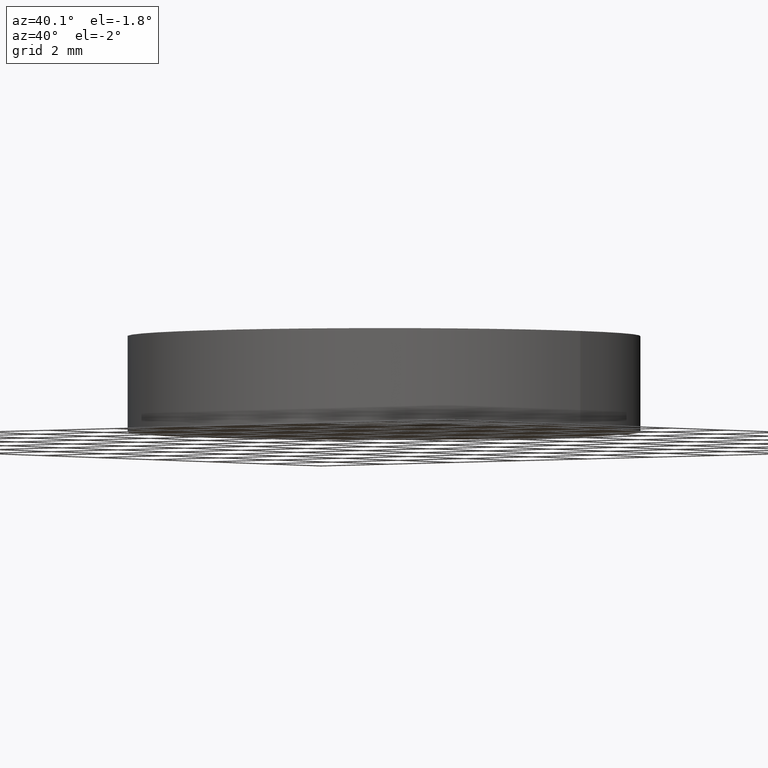
[diagram: clean part render]
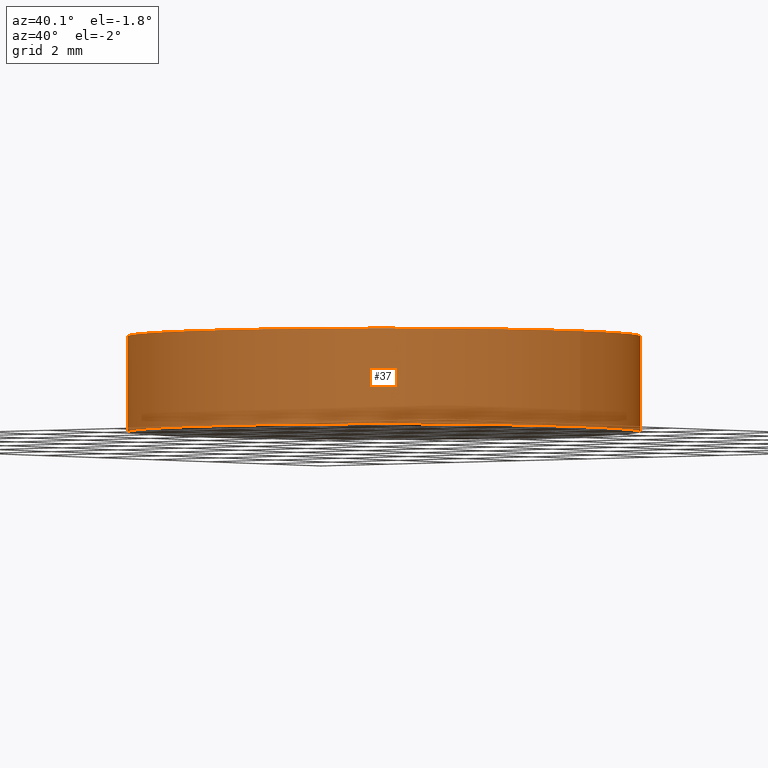
[diagram: same view with one face highlighted and labeled with its STEP entity id]
A machine part, auxiliary view. The second image highlights one B-rep face of the part: STEP entity #37.
In plain terms, the highlighted cylindrical surface (bore or boss wall) has radius 5.9 mm, axis along (0, 0, 1).
Its self-contained STEP definition (entity closure, byte-faithful):
#15=FACE_BOUND('',#22,.T.);
#16=CYLINDRICAL_SURFACE('',#43,5.9);
#18=FACE_OUTER_BOUND('',#21,.T.);
#21=EDGE_LOOP('',(#31));
#22=EDGE_LOOP('',(#32));
#24=CIRCLE('',#42,5.9);
#25=CIRCLE('',#44,5.9);
#26=VERTEX_POINT('',#60);
#27=VERTEX_POINT('',#63);
#28=EDGE_CURVE('',#26,#26,#24,.T.);
#29=EDGE_CURVE('',#27,#27,#25,.T.);
#31=ORIENTED_EDGE('',*,*,#28,.F.);
#32=ORIENTED_EDGE('',*,*,#29,.F.);
#37=ADVANCED_FACE('',(#18,#15),#16,.T.);
#42=AXIS2_PLACEMENT_3D('',#61,#50,#51);
#43=AXIS2_PLACEMENT_3D('',#62,#52,#53);
#44=AXIS2_PLACEMENT_3D('',#64,#54,#55);
#50=DIRECTION('center_axis',(0.,0.,-1.));
#51=DIRECTION('ref_axis',(-1.,0.,0.));
#52=DIRECTION('center_axis',(0.,0.,1.));
#53=DIRECTION('ref_axis',(-1.,0.,0.));
#54=DIRECTION('center_axis',(0.,0.,1.));
#55=DIRECTION('ref_axis',(-1.,0.,0.));
#60=CARTESIAN_POINT('',(5.9,7.22541611496939E-16,-1.1));
#61=CARTESIAN_POINT('Origin',(0.,0.,-1.1));
#62=CARTESIAN_POINT('Origin',(0.,0.,0.));
#63=CARTESIAN_POINT('',(5.9,7.22541611496939E-16,1.1));
#64=CARTESIAN_POINT('Origin',(0.,0.,1.1));